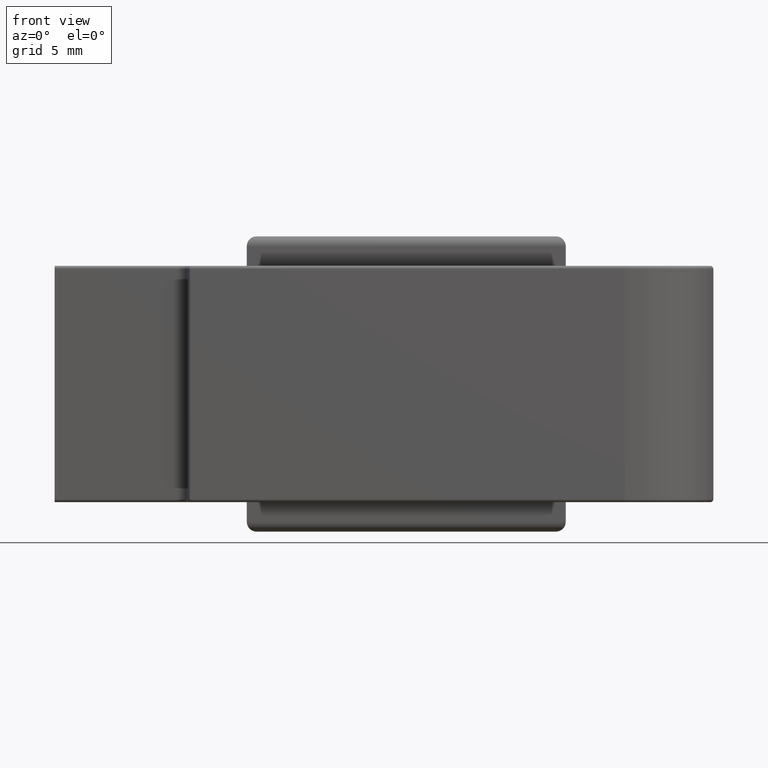
[diagram: clean part render]
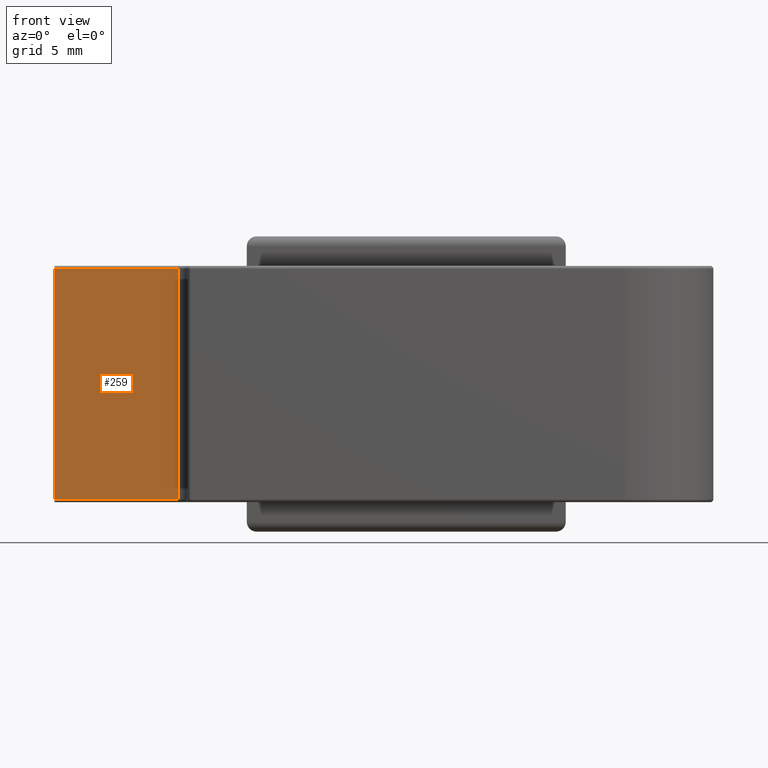
[diagram: same view with one face highlighted and labeled with its STEP entity id]
A machine part, front view. The second image highlights one B-rep face of the part: STEP entity #259.
In plain terms, the highlighted planar face has unit normal (-0, 1, -0).
Its self-contained STEP definition (entity closure, byte-faithful):
#126 = CARTESIAN_POINT ( 'NONE',  ( -6.760000000000050413, -2.899999999999999911, 12.00000000000003197 ) ) ;
#259 = ADVANCED_FACE ( 'NONE', ( #352 ), #2161, .F. ) ;
#295 = LINE ( 'NONE', #880, #682 ) ;
#317 = VECTOR ( 'NONE', #1072, 1000.000000000000000 ) ;
#352 = FACE_OUTER_BOUND ( 'NONE', #1302, .T. ) ;
#480 = VERTEX_POINT ( 'NONE', #745 ) ;
#566 = LINE ( 'NONE', #126, #710 ) ;
#617 = CARTESIAN_POINT ( 'NONE',  ( -0.5000000000000247580, -2.899999999999999911, 11.85000000000002629 ) ) ;
#682 = VECTOR ( 'NONE', #1062, 1000.000000000000000 ) ;
#710 = VECTOR ( 'NONE', #1609, 1000.000000000000000 ) ;
#745 = CARTESIAN_POINT ( 'NONE',  ( -6.760000000000050413, -2.899999999999999911, 11.85000000000002629 ) ) ;
#830 = CARTESIAN_POINT ( 'NONE',  ( -6.760000000000046860, -2.899999999999999911, 0.1500000000000042966 ) ) ;
#880 = CARTESIAN_POINT ( 'NONE',  ( -6.760000000000050413, -2.899999999999999911, 11.85000000000002629 ) ) ;
#939 = LINE ( 'NONE', #1445, #317 ) ;
#1006 = ORIENTED_EDGE ( 'NONE', *, *, #1200, .T. ) ;
#1062 = DIRECTION ( 'NONE',  ( -1.000000000000000000, -2.298859303523532316E-32, -0.000000000000000000 ) ) ;
#1072 = DIRECTION ( 'NONE',  ( 1.000000000000000000, 2.298859303523532316E-32, 0.000000000000000000 ) ) ;
#1123 = CARTESIAN_POINT ( 'NONE',  ( -6.760000000000050413, -2.899999999999999911, 12.00000000000003197 ) ) ;
#1200 = EDGE_CURVE ( 'NONE', #1349, #480, #295, .T. ) ;
#1285 = VECTOR ( 'NONE', #1996, 1000.000000000000000 ) ;
#1287 = CARTESIAN_POINT ( 'NONE',  ( -0.5000000000000004441, -2.899999999999999911, 0.1499999999999973577 ) ) ;
#1302 = EDGE_LOOP ( 'NONE', ( #1918, #1006, #1995, #1388 ) ) ;
#1349 = VERTEX_POINT ( 'NONE', #617 ) ;
#1388 = ORIENTED_EDGE ( 'NONE', *, *, #1766, .T. ) ;
#1445 = CARTESIAN_POINT ( 'NONE',  ( -0.5000000000000004441, -2.899999999999999911, 0.1499999999999973577 ) ) ;
#1498 = LINE ( 'NONE', #1804, #1285 ) ;
#1510 = VERTEX_POINT ( 'NONE', #830 ) ;
#1609 = DIRECTION ( 'NONE',  ( 0.000000000000000000, -6.162975822039132834E-33, -1.000000000000000000 ) ) ;
#1766 = EDGE_CURVE ( 'NONE', #1510, #1840, #939, .T. ) ;
#1804 = CARTESIAN_POINT ( 'NONE',  ( -0.5000000000000247580, -2.899999999999999911, 12.00000000000003197 ) ) ;
#1817 = DIRECTION ( 'NONE',  ( 0.000000000000000000, 6.162975822039132834E-33, 1.000000000000000000 ) ) ;
#1830 = EDGE_CURVE ( 'NONE', #480, #1510, #566, .T. ) ;
#1840 = VERTEX_POINT ( 'NONE', #1287 ) ;
#1884 = EDGE_CURVE ( 'NONE', #1840, #1349, #1498, .T. ) ;
#1918 = ORIENTED_EDGE ( 'NONE', *, *, #1884, .T. ) ;
#1986 = DIRECTION ( 'NONE',  ( -1.663310252921208862E-33, 1.000000000000000000, -6.162975822039132834E-33 ) ) ;
#1995 = ORIENTED_EDGE ( 'NONE', *, *, #1830, .T. ) ;
#1996 = DIRECTION ( 'NONE',  ( -0.000000000000000000, 6.162975822039132834E-33, 1.000000000000000000 ) ) ;
#2161 = PLANE ( 'NONE',  #2189 ) ;
#2189 = AXIS2_PLACEMENT_3D ( 'NONE', #1123, #1986, #1817 ) ;